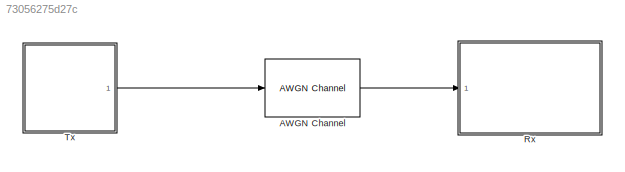
MODEL slx_73056275d27c
KIND model
BLOCK [Reference] AWGN Channel  REF=commchan3/AWGN
Channel
  EbNodB = SNR
  EsNodB = 10
  InputProcessing = Columns as channels (frame based)
  Ports = [1, 1]
  Ps = 1
  SNRdB = 10
  SourceBlock = commchan3/AWGN\nChannel
  SourceType = AWGN Channel
  Tsym = 1/BitRate
  UserDataPersistent = on
  bitsPerSym = 1
  noiseMode = Signal to noise ratio  (Eb/No)
  seed = 67
  variance = 1
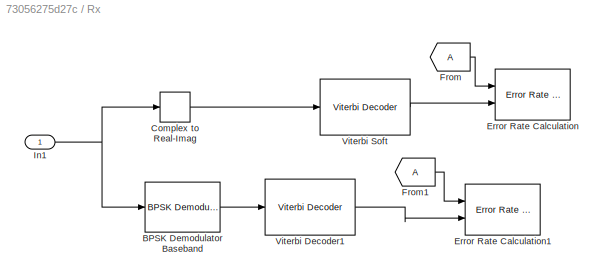
BLOCK [SubSystem] Rx 
  Ports = [1]
  RequestExecContextInheritance = off
BLOCK [Reference] Rx /BPSK Demodulator Baseband  REF=commdigbbndpm3/BPSK
Demodulator
Baseband
  DecType = Hard decision
  Ph = 0
  Ports = [1, 1]
  SourceBlock = commdigbbndpm3/BPSK\nDemodulator\nBaseband
  SourceType = BPSK Demodulator Baseband
  VarSource = Dialog
  Variance = 1
  derotateFactorDTMode = Same word length as input
  derotateFactorWordLen = 16
  outDtype = Inherit via internal rule
BLOCK [ComplexToRealImag] Rx /Complex to Real-Imag
  Output = Real
  Ports = [1, 1]
BLOCK [Reference] Rx /Error Rate Calculation  REF=commsink2/Error Rate
Calculation
  N = 0
  PMode = Workspace
  Ports = [2]
  RsMode2 = off
  SourceBlock = commsink2/Error Rate\nCalculation
  SourceType = Error Rate Calculation
  WsName = BER1
  cp_mode = Entire frame
  maxBits = 1e6
  numErr = 100
  st_delay = 6*Lc
  stop = off
  subframe = []
BLOCK [Reference] Rx /Error Rate Calculation1  REF=commsink2/Error Rate
Calculation
  N = 0
  PMode = Workspace
  Ports = [2]
  RsMode2 = off
  SourceBlock = commsink2/Error Rate\nCalculation
  SourceType = Error Rate Calculation
  WsName = BER2
  cp_mode = Entire frame
  maxBits = 1e6
  numErr = 100
  st_delay = 6*Lc
  stop = off
  subframe = []
BLOCK [From] Rx /From
BLOCK [From] Rx /From1
BLOCK [Inport] Rx /In1
  IconDisplay = Port number
BLOCK [Reference] Rx /Viterbi Decoder1  REF=commcnvcod2/Viterbi Decoder
  Ports = [1, 1]
  SourceBlock = commcnvcod2/Viterbi Decoder
  SourceType = Viterbi Decoder
  dectype = Hard decision
  delayedResetAction = off
  erasures = off
  isPunctured = off
  nsdecb = 4
  opmode = Continuous
  outDataType = Inherit via internal rule
  punctureVector = [1; 1; 0; 1; 0; 1]
  reset = off
  runSigValErrCheck = off
  smWordLength = 16
  tbdepth = 6*Lc
  trellis = poly2trellis(Lc, [171 133])
BLOCK [Reference] Rx /Viterbi Soft  REF=commcnvcod2/Viterbi Decoder
  Ports = [1, 1]
  SourceBlock = commcnvcod2/Viterbi Decoder
  SourceType = Viterbi Decoder
  dectype = Soft decision
  delayedResetAction = off
  erasures = off
  isPunctured = off
  nsdecb = 4
  opmode = Continuous
  outDataType = Inherit via internal rule
  punctureVector = [1; 1; 0; 1; 0; 1]
  reset = off
  runSigValErrCheck = off
  smWordLength = 16
  tbdepth = 6*Lc
  trellis = poly2trellis(Lc, [171 133])
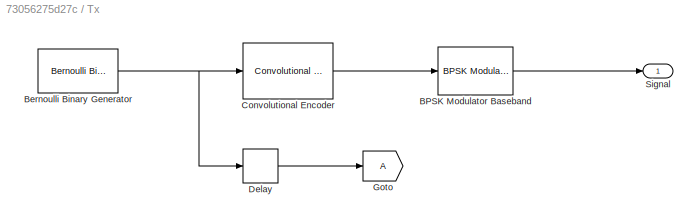
BLOCK [SubSystem] Tx
  Ports = [0, 1]
  RequestExecContextInheritance = off
BLOCK [Reference] Tx/BPSK Modulator Baseband  REF=commdigbbndpm3/BPSK
Modulator
Baseband
  Ph = 0
  Ports = [1, 1]
  SourceBlock = commdigbbndpm3/BPSK\nModulator\nBaseband
  SourceType = BPSK Modulator Baseband
  outDtype = double
  outFracLen = 15
  outFracLenMode = Best precision
  outUDDataType = sfix(16)
  outWordLen = 16
BLOCK [Reference] Tx/Bernoulli Binary Generator  REF=commrandsrc2/Bernoulli Binary
Generator
  P = 0.5
  Ports = [0, 1]
  SourceBlock = commrandsrc2/Bernoulli Binary\nGenerator
  SourceType = Bernoulli Binary Generator
  Ts = 1/BitRate
  frameBased = on
  orient = off
  outDataType = double
  sampPerFrame = BitRate
  seed = 61
BLOCK [Reference] Tx/Convolutional Encoder  REF=commcnvcod2/Convolutional
Encoder
  DelayedResetAction = off
  Ports = [1, 1]
  SourceBlock = commcnvcod2/Convolutional\nEncoder
  SourceType = Convolutional Encoder
  hasFinStPort = off
  hasIniStPort = off
  opMode = Continuous
  punctureVector = [1; 1; 0; 1; 0; 1]
  reset = Unused parameter value
  trellis = poly2trellis(Lc, [171 133])
  usePuncVector = off
BLOCK [Delay] Tx/Delay
  DelayLength = 6*Lc
  InitialCondition = 0
  InputPortMap = u0
  InputProcessing = Inherited
  Ports = [1, 1]
BLOCK [Goto] Tx/Goto
  TagVisibility = global
BLOCK [Outport] Tx/Signal
  IconDisplay = Port number
LINE AWGN Channel:1 -> Rx :1
LINE Rx /BPSK Demodulator Baseband:1 -> Rx /Viterbi Decoder1:1
LINE Rx /Complex to Real-Imag:1 -> Rx /Viterbi Soft:1
LINE Rx /From1:1 -> Rx /Error Rate Calculation1:1
LINE Rx /From:1 -> Rx /Error Rate Calculation:1
NET Rx /In1:1 -> Rx /BPSK Demodulator Baseband:1, Rx /Complex to Real-Imag:1
LINE Rx /Viterbi Decoder1:1 -> Rx /Error Rate Calculation1:2
LINE Rx /Viterbi Soft:1 -> Rx /Error Rate Calculation:2
LINE Tx/BPSK Modulator Baseband:1 -> Tx/Signal:1
NET Tx/Bernoulli Binary Generator:1 -> Tx/Convolutional Encoder:1, Tx/Delay:1
LINE Tx/Convolutional Encoder:1 -> Tx/BPSK Modulator Baseband:1
LINE Tx/Delay:1 -> Tx/Goto:1
LINE Tx:1 -> AWGN Channel:1
note: NET lines group one-source signal fan-out (src -> all destinations, sorted); 1:1 wires keep LINE
